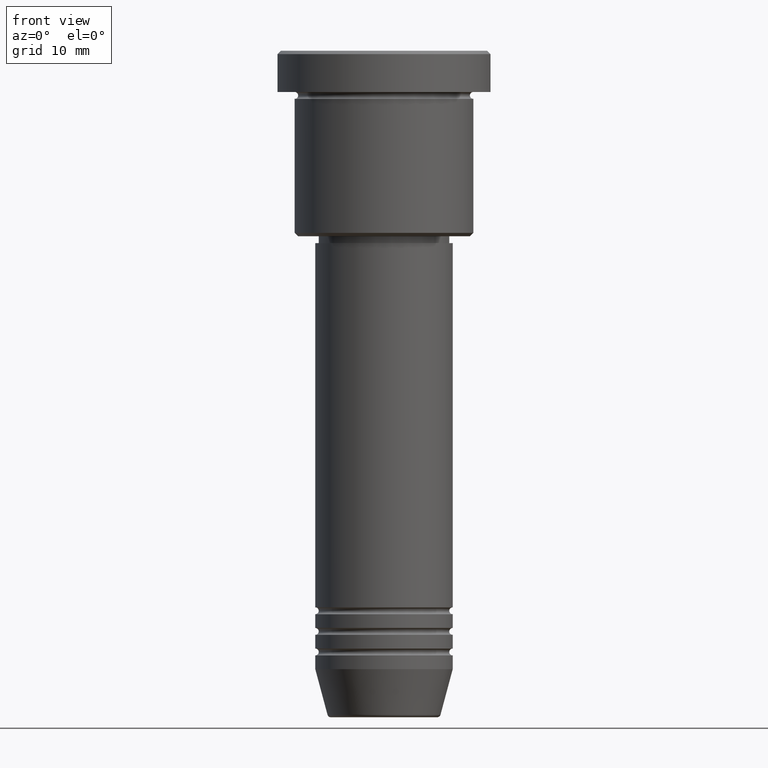
[diagram: clean part render]
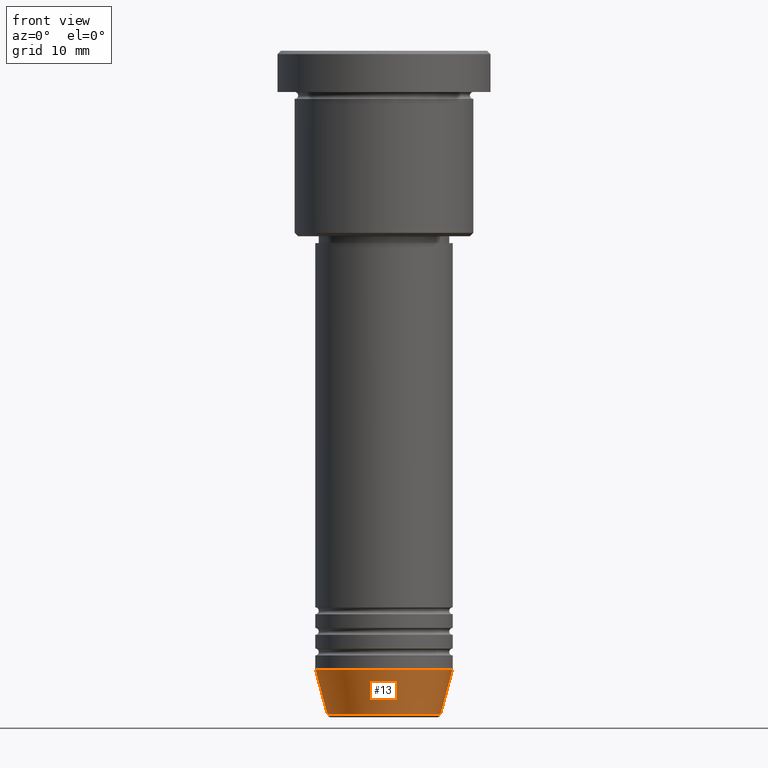
[diagram: same view with one face highlighted and labeled with its STEP entity id]
A machine part, front view. The second image highlights one B-rep face of the part: STEP entity #13.
In plain terms, the highlighted conical surface has half-angle 15 deg.
Its self-contained STEP definition (entity closure, byte-faithful):
#13 = ADVANCED_FACE ( 'NONE', ( #230 ), #21, .T. ) ;
#21 = CONICAL_SURFACE ( 'NONE', #1113, 10.00000000000000000, 0.2617993877991500740 ) ;
#37 = CARTESIAN_POINT ( 'NONE',  ( -8.223655072137187716, 1.115877042642911856E-15, -96.62940952255127058 ) ) ;
#140 = VECTOR ( 'NONE', #626, 1000.000000000000000 ) ;
#142 = AXIS2_PLACEMENT_3D ( 'NONE', #1037, #490, #379 ) ;
#151 = ORIENTED_EDGE ( 'NONE', *, *, #1090, .F. ) ;
#156 = CARTESIAN_POINT ( 'NONE',  ( 0.000000000000000000, 0.000000000000000000, -90.00000000000000000 ) ) ;
#179 = EDGE_CURVE ( 'NONE', #493, #1008, #1007, .T. ) ;
#202 = CARTESIAN_POINT ( 'NONE',  ( 10.00000000000000000, 0.000000000000000000, -90.00000000000000000 ) ) ;
#230 = FACE_OUTER_BOUND ( 'NONE', #296, .T. ) ;
#231 = ORIENTED_EDGE ( 'NONE', *, *, #739, .T. ) ;
#258 = ORIENTED_EDGE ( 'NONE', *, *, #179, .T. ) ;
#264 = DIRECTION ( 'NONE',  ( 0.2588190451025213501, 0.000000000000000000, 0.9659258262890680902 ) ) ;
#296 = EDGE_LOOP ( 'NONE', ( #487, #231, #258, #151 ) ) ;
#346 = CARTESIAN_POINT ( 'NONE',  ( -10.00000000000000000, 1.224646799147353256E-15, -90.00000000000000000 ) ) ;
#351 = VERTEX_POINT ( 'NONE', #656 ) ;
#354 = DIRECTION ( 'NONE',  ( 1.000000000000000000, 0.000000000000000000, 0.000000000000000000 ) ) ;
#379 = DIRECTION ( 'NONE',  ( 1.000000000000000000, 0.000000000000000000, 0.000000000000000000 ) ) ;
#466 = CARTESIAN_POINT ( 'NONE',  ( 8.223655072137187716, 0.000000000000000000, -96.62940952255127058 ) ) ;
#487 = ORIENTED_EDGE ( 'NONE', *, *, #798, .F. ) ;
#490 = DIRECTION ( 'NONE',  ( -0.000000000000000000, -0.000000000000000000, 1.000000000000000000 ) ) ;
#493 = VERTEX_POINT ( 'NONE', #466 ) ;
#556 = VECTOR ( 'NONE', #264, 1000.000000000000000 ) ;
#560 = CIRCLE ( 'NONE', #142, 10.00000000000000000 ) ;
#609 = CARTESIAN_POINT ( 'NONE',  ( 0.000000000000000000, 0.000000000000000000, -96.62940952255127058 ) ) ;
#626 = DIRECTION ( 'NONE',  ( -0.2588190451025213501, 3.169619151431772337E-17, 0.9659258262890680902 ) ) ;
#656 = CARTESIAN_POINT ( 'NONE',  ( -10.00000000000000000, 1.224646799147353256E-15, -90.00000000000000000 ) ) ;
#709 = DIRECTION ( 'NONE',  ( -0.000000000000000000, -0.000000000000000000, 1.000000000000000000 ) ) ;
#712 = DIRECTION ( 'NONE',  ( -0.000000000000000000, -0.000000000000000000, 1.000000000000000000 ) ) ;
#718 = LINE ( 'NONE', #346, #140 ) ;
#739 = EDGE_CURVE ( 'NONE', #1170, #493, #1138, .T. ) ;
#798 = EDGE_CURVE ( 'NONE', #1170, #351, #718, .T. ) ;
#896 = CARTESIAN_POINT ( 'NONE',  ( 10.00000000000000000, 0.000000000000000000, -90.00000000000000000 ) ) ;
#920 = AXIS2_PLACEMENT_3D ( 'NONE', #609, #712, #354 ) ;
#1007 = LINE ( 'NONE', #896, #556 ) ;
#1008 = VERTEX_POINT ( 'NONE', #202 ) ;
#1037 = CARTESIAN_POINT ( 'NONE',  ( 0.000000000000000000, 0.000000000000000000, -90.00000000000000000 ) ) ;
#1090 = EDGE_CURVE ( 'NONE', #351, #1008, #560, .T. ) ;
#1113 = AXIS2_PLACEMENT_3D ( 'NONE', #156, #709, #1164 ) ;
#1138 = CIRCLE ( 'NONE', #920, 8.223655072137187716 ) ;
#1164 = DIRECTION ( 'NONE',  ( 1.000000000000000000, 0.000000000000000000, 0.000000000000000000 ) ) ;
#1170 = VERTEX_POINT ( 'NONE', #37 ) ;